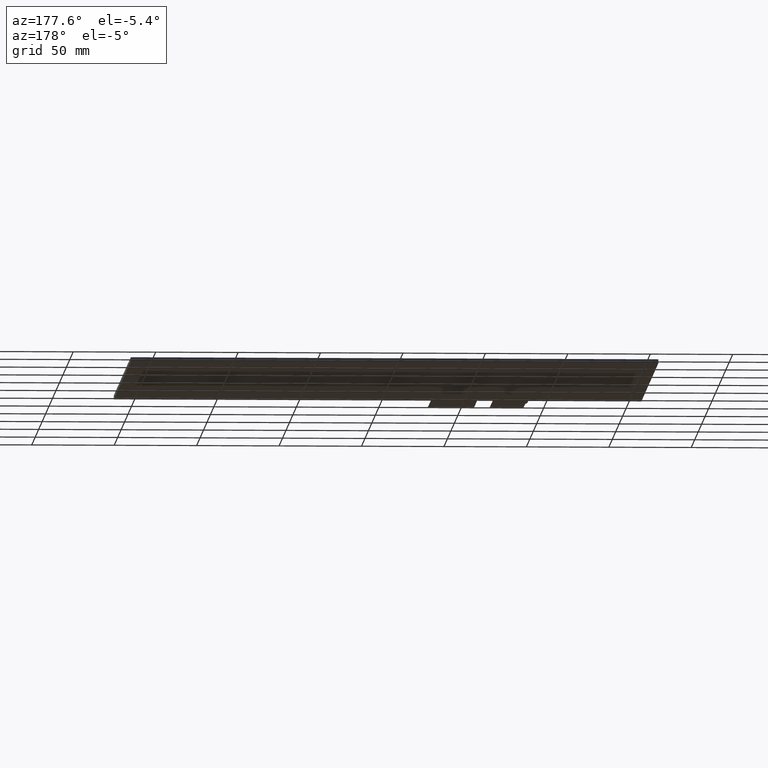
[diagram: clean part render]
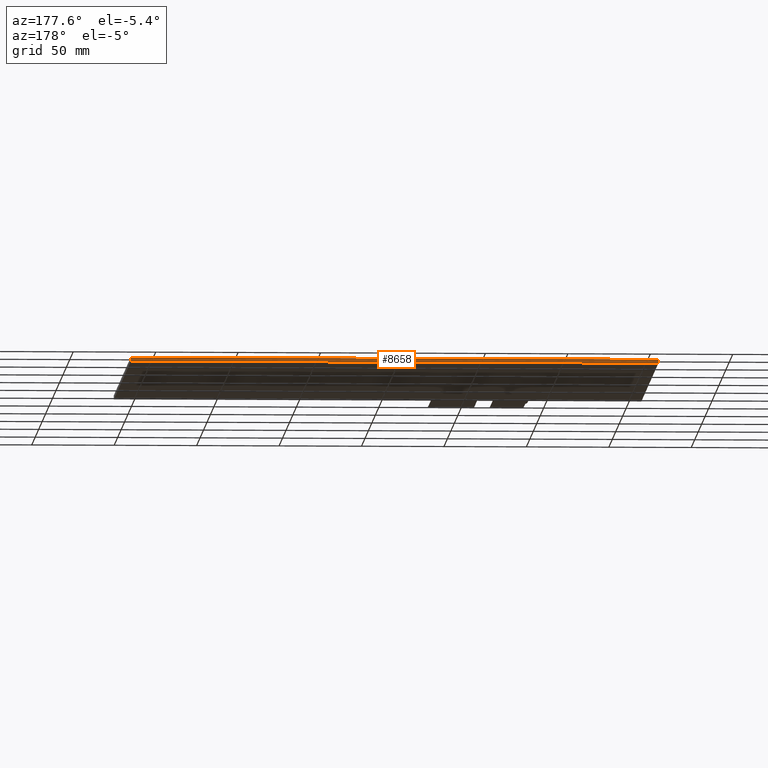
[diagram: same view with one face highlighted and labeled with its STEP entity id]
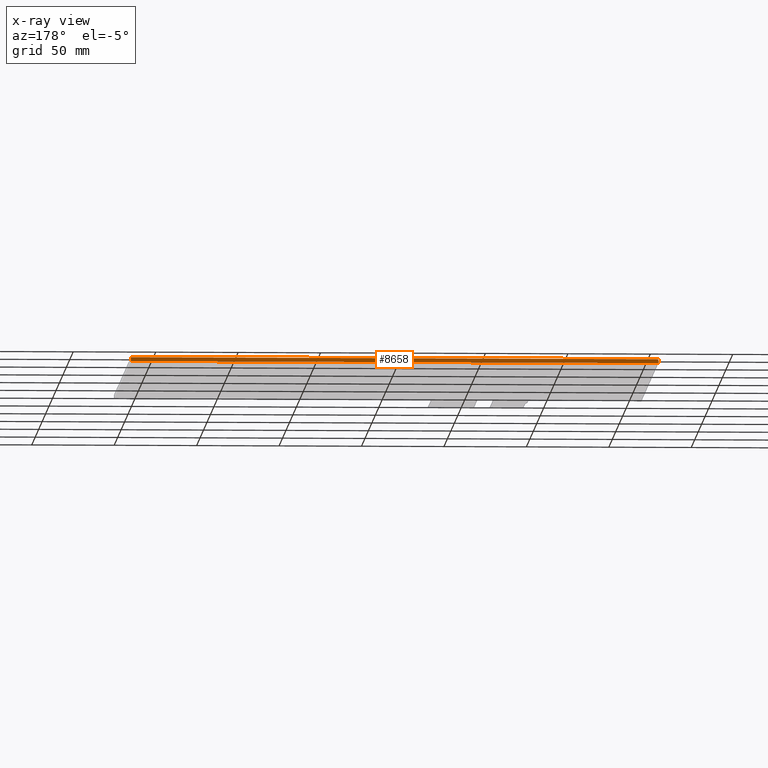
[diagram: x-ray of the same camera — body ghosted, the highlighted face saturated]
A machine part, auxiliary view. The second image highlights one B-rep face of the part: STEP entity #8658.
The next image is the same camera in x-ray: the body ghosted, the highlighted face saturated — about 0% of this face is hidden behind the body in this view.
In plain terms, the highlighted planar face has unit normal (0, 1, 0).
Its self-contained STEP definition (entity closure, byte-faithful):
#490=PLANE('',#9102);
#902=FACE_OUTER_BOUND('',#1314,.T.);
#1314=EDGE_LOOP('',(#8214,#8215,#8216,#8217));
#2522=LINE('',#13600,#3734);
#2523=LINE('',#13602,#3735);
#2524=LINE('',#13604,#3736);
#2525=LINE('',#13605,#3737);
#3734=VECTOR('',#11148,10.);
#3735=VECTOR('',#11149,10.);
#3736=VECTOR('',#11150,10.);
#3737=VECTOR('',#11151,10.);
#4566=VERTEX_POINT('',#13598);
#4567=VERTEX_POINT('',#13599);
#4568=VERTEX_POINT('',#13601);
#4569=VERTEX_POINT('',#13603);
#5786=EDGE_CURVE('',#4566,#4567,#2522,.T.);
#5787=EDGE_CURVE('',#4566,#4568,#2523,.T.);
#5788=EDGE_CURVE('',#4569,#4568,#2524,.T.);
#5789=EDGE_CURVE('',#4567,#4569,#2525,.T.);
#8214=ORIENTED_EDGE('',*,*,#5786,.F.);
#8215=ORIENTED_EDGE('',*,*,#5787,.T.);
#8216=ORIENTED_EDGE('',*,*,#5788,.F.);
#8217=ORIENTED_EDGE('',*,*,#5789,.F.);
#8658=ADVANCED_FACE('',(#902),#490,.T.);
#9102=AXIS2_PLACEMENT_3D('',#13597,#11146,#11147);
#11146=DIRECTION('center_axis',(0.,1.,0.));
#11147=DIRECTION('ref_axis',(1.,0.,0.));
#11148=DIRECTION('',(-1.,0.,0.));
#11149=DIRECTION('',(0.,0.,-1.));
#11150=DIRECTION('',(1.,0.,0.));
#11151=DIRECTION('',(0.,0.,-1.));
#13597=CARTESIAN_POINT('Origin',(-160.32,121.39,0.));
#13598=CARTESIAN_POINT('',(159.68,121.39,0.));
#13599=CARTESIAN_POINT('',(-160.32,121.39,0.));
#13600=CARTESIAN_POINT('',(159.68,121.39,0.));
#13601=CARTESIAN_POINT('',(159.68,121.39,-2.35));
#13602=CARTESIAN_POINT('',(159.68,121.39,0.));
#13603=CARTESIAN_POINT('',(-160.32,121.39,-2.35));
#13604=CARTESIAN_POINT('',(159.68,121.39,-2.35));
#13605=CARTESIAN_POINT('',(-160.32,121.39,0.));